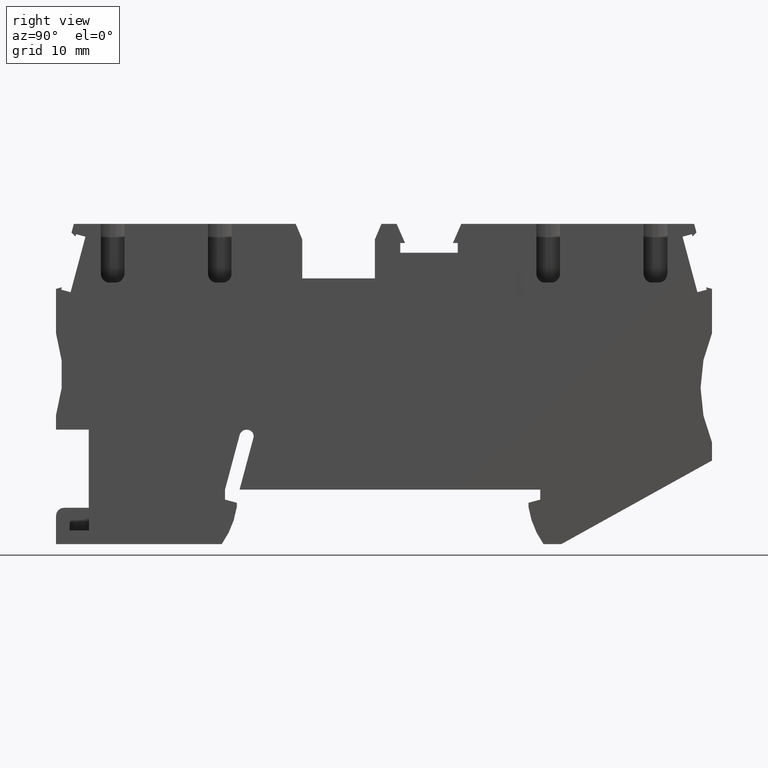
[diagram: clean part render]
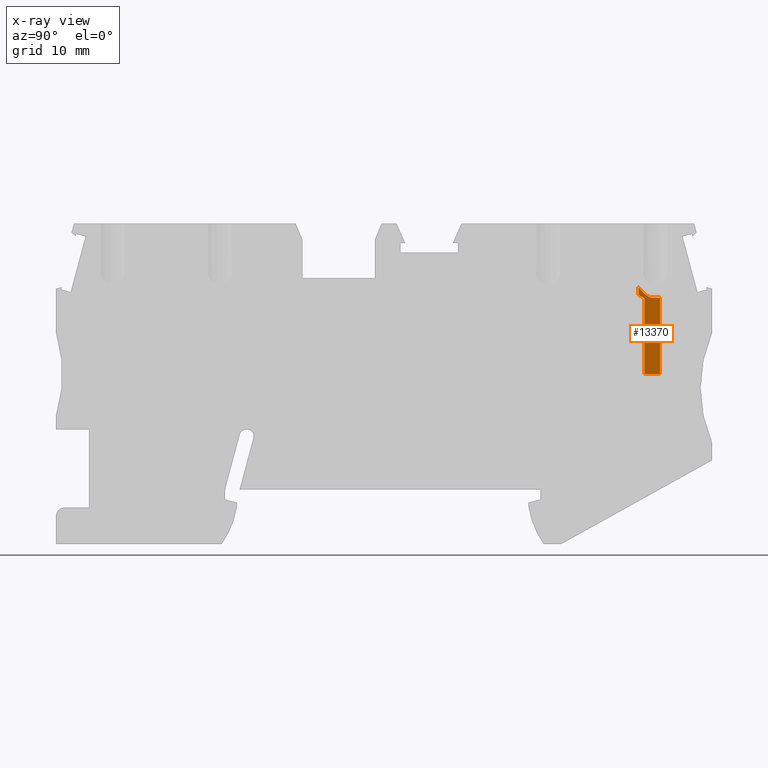
[diagram: x-ray — body ghosted, one internal face saturated and labeled with its STEP entity id]
A machine part, right view, then the same camera in x-ray: the body is ghosted and one INTERNAL B-rep face — a face not visible from any outside direction — is saturated and labeled: STEP entity #13370.
In plain terms, the highlighted planar face has unit normal (1, -0, 0).
Its self-contained STEP definition (entity closure, byte-faithful):
#11750=CARTESIAN_POINT('',(63.5400707790207,27.8835869704776,
-0.949999999998339));
#11760=DIRECTION('',(-3.23074391524834E-12,6.19295182033013E-13,1.));
#11770=DIRECTION('',(-0.992546151641365,-0.121869343404804,
-3.13118934281038E-12));
#11780=AXIS2_PLACEMENT_3D('',#11750,#11760,#11770);
#11790=PLANE('',#11780);
#11800=CARTESIAN_POINT('',(62.5315220134732,30.4296537906156,
-2.4000000000032));
#11810=DIRECTION('',(-0.121869343404804,0.992546151641364,
-1.00848709774782E-12));
#11820=DIRECTION('',(0.992546151641365,0.121869343404804,
3.13118934281038E-12));
#11830=AXIS2_PLACEMENT_3D('',#11800,#11810,#11820);
#11840=CONICAL_SURFACE('',#11830,2.4,0.523598775598298);
#11850=CARTESIAN_POINT('',(61.0516515699173,29.7636923264001,
-0.950000000007542));
#11860=CARTESIAN_POINT('',(61.0811642461089,29.7345174496876,
-0.950000000007429));
#11870=CARTESIAN_POINT('',(61.1108388251154,29.7055119112823,
-0.950000000007315));
#11880=CARTESIAN_POINT('',(61.14069543055,29.6766997098717,
-0.950000000007201));
#11890=CARTESIAN_POINT('',(61.170552018339,29.6478875254895,
-0.950000000007087));
#11900=CARTESIAN_POINT('',(61.2005906598548,29.6192685234403,
-0.950000000006972));
#11910=CARTESIAN_POINT('',(61.2308352730185,29.5908714455711,
-0.950000000006857));
#11920=CARTESIAN_POINT('',(61.2610798522869,29.5624743995266,
-0.950000000006742));
#11930=CARTESIAN_POINT('',(61.2915304539388,29.5342990637844,
-0.950000000010107));
#11940=CARTESIAN_POINT('',(61.3222154177435,29.5063805174587,
-0.950000000009991));
#11950=CARTESIAN_POINT('',(61.3528981921829,29.4784639631149,
-0.950000000009874));
#11960=CARTESIAN_POINT('',(61.3838010334379,29.4508150595076,
-0.950000000006275));
#11970=CARTESIAN_POINT('',(61.4151220190898,29.4233371704196,
-0.950000000006157));
#11980=CARTESIAN_POINT('',(61.4464281241209,29.3958723360946,
-0.950000000006039));
#11990=CARTESIAN_POINT('',(61.4780842814648,29.3686398266214,
-0.95000000000592));
#12000=CARTESIAN_POINT('',(61.5100843604946,29.3417416438912,
-0.9500000000058));
#12010=CARTESIAN_POINT('',(61.5420845430245,29.3148433741624,
-0.95000000000568));
#12020=CARTESIAN_POINT('',(61.5744285927821,29.2882791738936,
-0.95000000000556));
#12030=CARTESIAN_POINT('',(61.6071214960915,29.2621576248473,
-0.950000000005438));
#12040=CARTESIAN_POINT('',(61.6398145508734,29.2360359547748,
-0.950000000005316));
#12050=CARTESIAN_POINT('',(61.6728565901331,29.2103563831282,
-0.950000000005192));
#12060=CARTESIAN_POINT('',(61.7062677823732,29.1852364319917,
-0.950000000005068));
#12070=CARTESIAN_POINT('',(61.7396791078294,29.1601163806976,
-0.950000000004945));
#12080=CARTESIAN_POINT('',(61.7734600682728,29.1355549457553,
-0.95000000000482));
#12090=CARTESIAN_POINT('',(61.8076494952712,29.1116841610196,
-0.950000000004695));
#12100=CARTESIAN_POINT('',(61.8418389236788,29.0878133752999,
-0.95000000000457));
#12110=CARTESIAN_POINT('',(61.8764379676912,29.0646315596349,
-0.950000000004444));
#12120=CARTESIAN_POINT('',(61.9115060241739,29.0422953840935,
-0.950000000004317));
#12130=CARTESIAN_POINT('',(61.9290401591693,29.0311272283272,
-0.950000000004254));
#12140=CARTESIAN_POINT('',(61.9466921100378,29.0201707921455,
-0.950000000004191));
#12150=CARTESIAN_POINT('',(61.9644713396977,29.0094490707205,
-0.950000000004127));
#12160=CARTESIAN_POINT('',(61.9822505443365,28.9987273643846,
-0.950000000004063));
#12170=CARTESIAN_POINT('',(62.0001571284977,28.9882402743159,
-0.950000000003998));
#12180=CARTESIAN_POINT('',(62.0182016160603,28.9780139510495,
-0.950000000003933));
#12190=CARTESIAN_POINT('',(62.0362460597266,28.9677876526603,
-0.950000000003869));
#12200=CARTESIAN_POINT('',(62.0544285438124,28.957822005171,
-0.950000000003804));
#12210=CARTESIAN_POINT('',(62.0727603224413,28.9481470641947,
-0.950000000003738));
#12220=CARTESIAN_POINT('',(62.0910920327246,28.938472159289,
-0.950000000003673));
#12230=CARTESIAN_POINT('',(62.109573219137,28.9290878299596,
-0.950000000003608));
#12240=CARTESIAN_POINT('',(62.1282153442065,28.9200288473928,
-0.950000000003542));
#12250=CARTESIAN_POINT('',(62.146857370646,28.9109699127545,
-0.950000000003476));
#12260=CARTESIAN_POINT('',(62.1656605688943,28.9022361854645,
-0.950000000004372));
#12270=CARTESIAN_POINT('',(62.1846358508383,28.8938679543625,
-0.950000000004305));
#12280=CARTESIAN_POINT('',(62.2036016937893,28.885503885922,
-0.950000000004239));
#12290=CARTESIAN_POINT('',(62.2227762950042,28.8774886099782,
-0.95000000001025));
#12300=CARTESIAN_POINT('',(62.2421703478415,28.8698735612053,
-0.950000000010182));
#12310=CARTESIAN_POINT('',(62.280952429312,28.8546458290549,
-0.950000000010048));
#12320=CARTESIAN_POINT('',(62.3205583759138,28.8410452032782,
-0.950000000002872));
#12330=CARTESIAN_POINT('',(62.3607493846438,28.8296022282697,
-0.950000000002735));
#12340=CARTESIAN_POINT('',(62.3808443908864,28.8238808825883,
-0.950000000002667));
#12350=CARTESIAN_POINT('',(62.4010843119317,28.8186987461233,
-0.950000000002598));
#12360=CARTESIAN_POINT('',(62.4214360508467,28.8141168133781,
-0.950000000002529));
#12370=CARTESIAN_POINT('',(62.441787831992,28.8095348711253,
-0.95000000000246));
#12380=CARTESIAN_POINT('',(62.4622508962041,28.8055533848826,
-0.950000000009911));
#12390=CARTESIAN_POINT('',(62.4827912824523,28.8022268199944,
-0.950000000009842));
#12400=CARTESIAN_POINT('',(62.5033317844177,28.7989002363656,
-0.950000000009774));
#12410=CARTESIAN_POINT('',(62.5239488126508,28.7962287960724,
-0.950000000002206));
#12420=CARTESIAN_POINT('',(62.5446097390662,28.7942583305943,
-0.950000000002138));
#12430=CARTESIAN_POINT('',(62.5652606961243,28.7922888159097,
-0.95000000000207));
#12440=CARTESIAN_POINT('',(62.5859817156825,28.7910152574999,
-0.950000000001984));
#12450=CARTESIAN_POINT('',(62.6068205645965,28.7904829482746,
-0.950000000001916));
#12460=CARTESIAN_POINT('',(62.6276500081519,28.7899508793006,
-0.950000000001849));
#12470=CARTESIAN_POINT('',(62.6485558291177,28.790163653179,
-0.950000000001781));
#12480=CARTESIAN_POINT('',(62.6694573283865,28.7911550501723,
-0.950000000001714));
#12490=CARTESIAN_POINT('',(62.6903585994907,28.7921464363434,
-0.950000000001647));
#12500=CARTESIAN_POINT('',(62.7112524437246,28.7939166160979,
-0.950000000001696));
#12510=CARTESIAN_POINT('',(62.7320517133907,28.7964704452905,
-0.950000000001631));
#12520=B_SPLINE_CURVE_WITH_KNOTS('',3,(#11850,#11860,#11870,#11880,
#11890,#11900,#11910,#11920,#11930,#11940,#11950,#11960,#11970,#11980,
#11990,#12000,#12010,#12020,#12030,#12040,#12050,#12060,#12070,#12080,
#12090,#12100,#12110,#12120,#12130,#12140,#12150,#12160,#12170,#12180,
#12190,#12200,#12210,#12220,#12230,#12240,#12250,#12260,#12270,#12280,
#12290,#12300,#12310,#12320,#12330,#12340,#12350,#12360,#12370,#12380,
#12390,#12400,#12410,#12420,#12430,#12440,#12450,#12460,#12470,#12480,
#12490,#12500,#12510),.UNSPECIFIED.,.F.,.F.,(4,3,3,3,3,3,3,3,3,3,3,3,3,3
,3,3,3,3,3,3,3,3,4),(0.,0.124485789438011,0.248952348363003,
0.373408625648604,0.498021056126932,0.623225928223801,0.748727454458502,
0.874218466742501,0.999477419558415,1.12439065143653,1.18671559779765,
1.24896787361367,1.31116894404137,1.37334812325062,1.43554222957564,
1.49788402053906,1.6231637644795,1.68580314718563,1.74830949285841,
1.81065054342824,1.87298838361016,1.93564263929039,1.99847694368136),
.UNSPECIFIED.);
#12530=SURFACE_CURVE('',#12520,(#11840,#11790),.CURVE_3D.);
#12540=CARTESIAN_POINT('',(61.0516515699992,29.7636923263135,
-0.950000000008886));
#12550=VERTEX_POINT('',#12540);
#12560=CARTESIAN_POINT('',(62.7320517134014,28.7964704452738,
-0.950000000001515));
#12570=VERTEX_POINT('',#12560);
#12580=EDGE_CURVE('',#12550,#12570,#12530,.T.);
#12590=ORIENTED_EDGE('',*,*,#12580,.T.);
#12600=CARTESIAN_POINT('',(60.2009247462947,36.6923062940068,
-0.950000000014582));
#12610=DIRECTION('',(0.121869343404804,-0.992546151641365,
1.00840768931729E-12));
#12620=VECTOR('',#12610,1.);
#12630=LINE('',#12600,#12620);
#12640=CARTESIAN_POINT('',(61.1562775669904,28.9115819612959,
-0.950000000006677));
#12650=VERTEX_POINT('',#12640);
#12660=EDGE_CURVE('',#12550,#12650,#12630,.T.);
#12670=ORIENTED_EDGE('',*,*,#12660,.F.);
#12680=CARTESIAN_POINT('',(60.9203877265715,29.0117112579536,
-0.950000000007501));
#12690=DIRECTION('',(0.920504853452286,-0.390731128489638,
3.21590503010477E-12));
#12700=VECTOR('',#12690,1.);
#12710=LINE('',#12680,#12700);
#12720=CARTESIAN_POINT('',(61.8205947231516,28.6295960585292,
-0.950000000004356));
#12730=VERTEX_POINT('',#12720);
#12740=EDGE_CURVE('',#12650,#12730,#12710,.T.);
#12750=ORIENTED_EDGE('',*,*,#12740,.F.);
#12760=CARTESIAN_POINT('',(60.821266091069,36.7684746336353,
-0.950000000012625));
#12770=DIRECTION('',(0.121869343404688,-0.992546151641379,
1.00840768931692E-12));
#12780=VECTOR('',#12770,1.);
#12790=LINE('',#12760,#12780);
#12800=CARTESIAN_POINT('',(62.8382037244161,20.3418358239745,
-0.949999999995936));
#12810=VERTEX_POINT('',#12800);
#12820=EDGE_CURVE('',#12730,#12810,#12790,.T.);
#12830=ORIENTED_EDGE('',*,*,#12820,.F.);
#12840=CARTESIAN_POINT('',(61.9975877420439,20.2386211596911,
-0.949999999998588));
#12850=DIRECTION('',(-0.99254615164135,-0.121869343404921,
-3.13118934281026E-12));
#12860=VECTOR('',#12850,1.);
#12870=LINE('',#12840,#12860);
#12880=CARTESIAN_POINT('',(64.5751594897921,20.5551071749335,
-0.949999999978327));
#12890=VERTEX_POINT('',#12880);
#12900=EDGE_CURVE('',#12890,#12810,#12870,.T.);
#12910=ORIENTED_EDGE('',*,*,#12900,.T.);
#12920=CARTESIAN_POINT('',(63.6733263485971,27.8999486970758,
-0.949999999986697));
#12930=DIRECTION('',(0.121869343404804,-0.992546151641365,
1.13103740604782E-12));
#12940=VECTOR('',#12930,1.);
#12950=LINE('',#12920,#12940);
#12960=CARTESIAN_POINT('',(63.5472393372095,28.9268449978873,
-0.949999999987867));
#12970=VERTEX_POINT('',#12960);
#12980=EDGE_CURVE('',#12970,#12890,#12950,.T.);
#12990=ORIENTED_EDGE('',*,*,#12980,.T.);
#13000=CARTESIAN_POINT('',(63.1270497044594,30.5027753966585,
-2.39999999999058));
#13010=DIRECTION('',(-0.121869343404803,0.992546151641364,
-1.13123621589531E-12));
#13020=DIRECTION('',(0.992546151641365,0.121869343404804,
3.8387857648633E-12));
#13030=AXIS2_PLACEMENT_3D('',#13000,#13010,#13020);
#13040=CONICAL_SURFACE('',#13030,2.4,0.5235987755983);
#13050=CARTESIAN_POINT('',(63.540070779021,27.8835869704776,
-0.949999999987209));
#13060=DIRECTION('',(-3.94801082393203E-12,6.54776524099591E-13,1.));
#13070=DIRECTION('',(-0.992546151641365,-0.121869343404804,
-3.8387857648633E-12));
#13080=AXIS2_PLACEMENT_3D('',#13050,#13060,#13070);
#13090=PLANE('',#13080);
#13100=CARTESIAN_POINT('',(63.3275794043541,28.8695920513311,
-0.949999999988694));
#13110=CARTESIAN_POINT('',(63.3464245203173,28.8719059406192,
-0.949999999988621));
#13120=CARTESIAN_POINT('',(63.3652152455186,28.8748656224447,
-0.949999999988554));
#13130=CARTESIAN_POINT('',(63.3838892963252,28.8784583407236,
-0.949999999988483));
#13140=CARTESIAN_POINT('',(63.4025633360098,28.8820510568628,
-0.949999999988412));
#13150=CARTESIAN_POINT('',(63.4211187935699,28.8862763699325,
-0.949999999988382));
#13160=CARTESIAN_POINT('',(63.4394972695242,28.8911017634502,
-0.949999999988313));
#13170=CARTESIAN_POINT('',(63.4578758661548,28.8959271886522,
-0.949999999988244));
#13180=CARTESIAN_POINT('',(63.4760758877082,28.9013520461939,
-0.94999999998817));
#13190=CARTESIAN_POINT('',(63.4940478023023,28.9073275918118,
-0.949999999988103));
#13200=CARTESIAN_POINT('',(63.5120199598752,28.9133032182185,
-0.949999999988036));
#13210=CARTESIAN_POINT('',(63.5297628561704,28.9198288128242,
-0.949999999987929));
#13220=CARTESIAN_POINT('',(63.5472393371581,28.926844997881,
-0.949999999987864));
#13230=B_SPLINE_CURVE_WITH_KNOTS('',3,(#13100,#13110,#13120,#13130,
#13140,#13150,#13160,#13170,#13180,#13190,#13200,#13210,#13220),
.UNSPECIFIED.,.F.,.F.,(4,3,3,3,4),(0.,0.0570145908735351,
0.114052372384127,0.170974705630428,0.227642657577345),.UNSPECIFIED.);
#13240=SURFACE_CURVE('',#13230,(#13040,#13090),.CURVE_3D.);
#13250=CARTESIAN_POINT('',(63.3275794043563,28.8695920513123,
-0.949999999999636));
#13260=VERTEX_POINT('',#13250);
#13270=EDGE_CURVE('',#13260,#12970,#13240,.T.);
#13280=ORIENTED_EDGE('',*,*,#13270,.T.);
#13290=CARTESIAN_POINT('',(18.0207021446863,23.306607021137,
-0.950000000163923));
#13300=DIRECTION('',(0.992546151641365,0.121869343404804,
3.8387857648633E-12));
#13310=VECTOR('',#13300,1.);
#13320=LINE('',#13290,#13310);
#13330=EDGE_CURVE('',#12570,#13260,#13320,.T.);
#13340=ORIENTED_EDGE('',*,*,#13330,.T.);
#13350=EDGE_LOOP('',(#13340,#13280,#12990,#12910,#12830,#12750,#12670,
#12590));
#13360=FACE_OUTER_BOUND('',#13350,.T.);
#13370=ADVANCED_FACE('',(#13360),#11790,.F.);